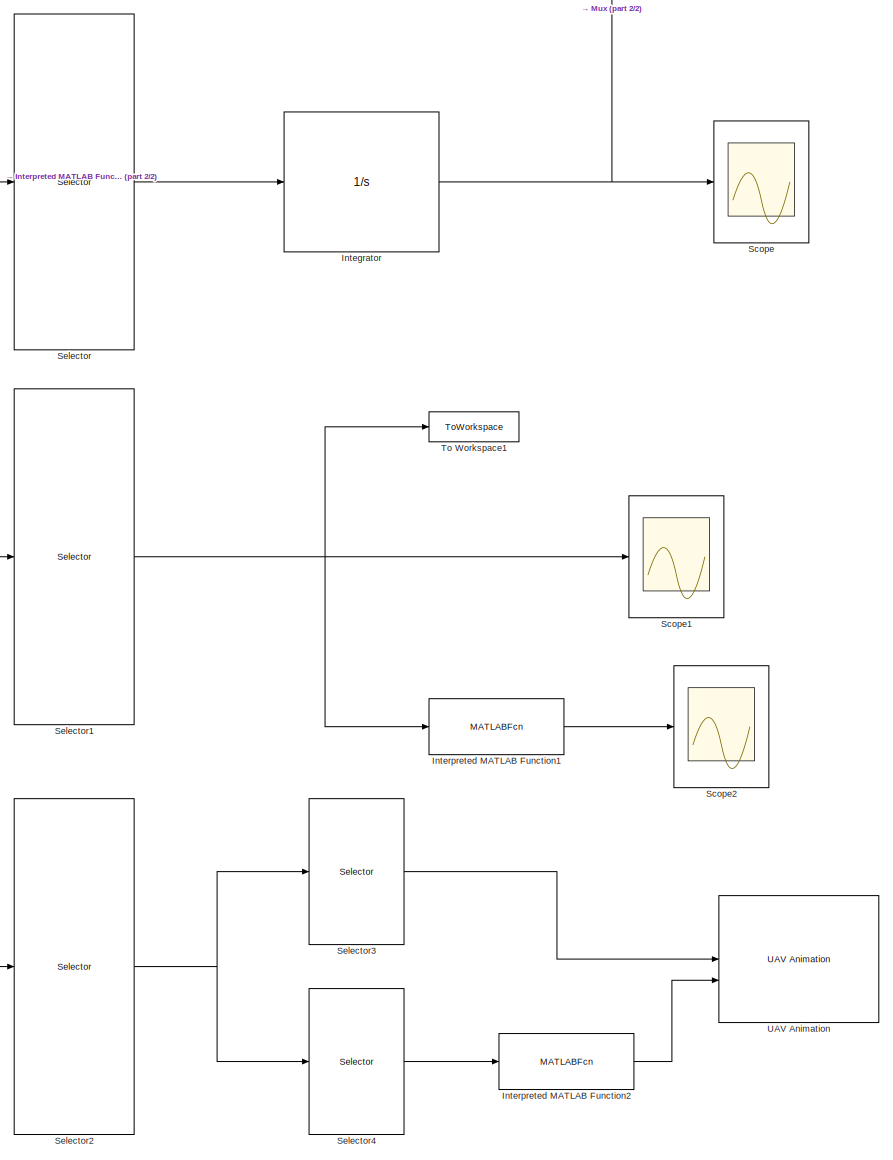
[diagram: root canvas - part 1/2, right side, full height]
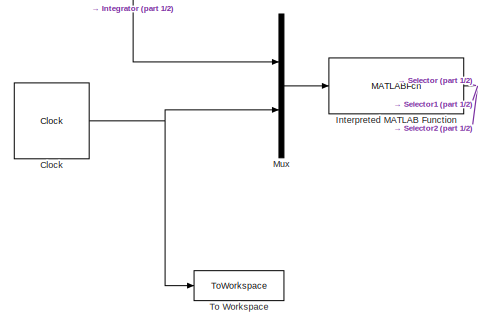
[diagram: root canvas - part 2/2, middle left region]
MODEL slx_6b4721a131e0
KIND model
CONFIG AbsTol = auto
CONFIG EnableMultiTasking = off
CONFIG FixedStep = 0.0001
CONFIG MaxStep = auto
CONFIG MinStep = auto
CONFIG RelTol = 1e-3
CONFIG SampleTimeConstraint = Unconstrained
CONFIG SolverName = ode1
CONFIG StartTime = 0.0
CONFIG StopTime = 100
BLOCK [Clock] Clock
  DisplayTime = on
BLOCK [Integrator] Integrator
  InitialCondition = [1 0 -1 0 0 0 0.1 0 -0.2 0 0.2 0]
BLOCK [MATLABFcn] Interpreted MATLAB Function
  MATLABFcn = Outerlooptest
  OutputDimensions = 16
BLOCK [MATLABFcn] Interpreted MATLAB Function1
  MATLABFcn = Innerlooptest
  OutputDimensions = 4
BLOCK [MATLABFcn] Interpreted MATLAB Function2
  MATLABFcn = quatcompute
  OutputDimensions = 4
BLOCK [Mux] Mux
  DisplayOption = bar
  Inputs = 2
BLOCK [Scope] Scope
  Floating = off
  NumInputPorts = 1
  ScopeSpecificationString = Simulink.scopes.TimeScopeBlockCfg('CurrentConfiguration', extmgr.ConfigurationSet(extmgr.Configuration('Core','General UI',true),extmgr.Configuration('Core','Source UI',true),extmgr.Configuration('Sources','WiredSimulink',true),extmgr.Configuration('Visuals','Time Domain',true,'SerializedDisplays',{struct('MinYLimReal','-11.21753','MaxYLimReal','12.65063','YLabelReal','','MinYLimMag','0.00000','Ma...<+2008ch>
BLOCK [Scope] Scope1
  Floating = off
  NumInputPorts = 1
  ScopeSpecificationString = Simulink.scopes.TimeScopeBlockCfg('CurrentConfiguration', extmgr.ConfigurationSet(extmgr.Configuration('Core','General UI',true,'FigureColor',[1 1 1]),extmgr.Configuration('Core','Source UI',true),extmgr.Configuration('Sources','WiredSimulink',true,'DataLoggingVariableName','ScopeData1'),extmgr.Configuration('Visuals','Time Domain',true,'SerializedDisplays',{struct('MinYLimReal','-3.02907','MaxYLi...<+2105ch>
BLOCK [Scope] Scope2
  Floating = off
  NumInputPorts = 1
  ScopeSpecificationString = Simulink.scopes.TimeScopeBlockCfg('CurrentConfiguration', extmgr.ConfigurationSet(extmgr.Configuration('Core','General UI',true,'FigureColor',[1 1 1]),extmgr.Configuration('Core','Source UI',true),extmgr.Configuration('Sources','WiredSimulink',true,'DataLoggingVariableName','ScopeData1'),extmgr.Configuration('Visuals','Time Domain',true,'SerializedDisplays',{struct('MinYLimReal','9.80579','MaxYLim...<+2144ch>
BLOCK [Selector] Selector
  IndexOptions = Index vector (dialog)
  Indices = [1 2 3 4 5 6 7 8 9 10 11 12]
  InputPortWidth = 16
  OutputSizes = 1
BLOCK [Selector] Selector1
  IndexOptions = Index vector (dialog)
  Indices = [13 14 15 16]
  InputPortWidth = 16
  OutputSizes = 1
BLOCK [Selector] Selector2
  IndexOptions = Index vector (dialog)
  Indices = [1 3 5 7 9 11]
  InputPortWidth = 16
  OutputSizes = 1
BLOCK [Selector] Selector3
  IndexOptions = Index vector (dialog)
  Indices = [1 2 3]
  InputPortWidth = 6
  OutputSizes = 1
BLOCK [Selector] Selector4
  IndexOptions = Index vector (dialog)
  Indices = [4 5 6]
  InputPortWidth = 6
  OutputSizes = 1
BLOCK [ToWorkspace] To Workspace
  MaxDataPoints = inf
  SampleTime = -1
  VariableName = time
BLOCK [ToWorkspace] To Workspace1
  FixptAsFi = on
  MaxDataPoints = inf
  SampleTime = -1
  VariableName = forcTorq
BLOCK [Reference] UAV Animation  REF=uavutilslib/UAV Animation
  SourceBlock = uavutilslib/UAV Animation
  SourceType = uav.sluav.internal.system.UAVAnimation
NET Clock:1 -> Mux:2, To Workspace:1
NET Integrator:1 -> Mux:1, Scope:1
LINE Interpreted MATLAB Function1:1 -> Scope2:1
LINE Interpreted MATLAB Function2:1 -> UAV Animation:2
NET Interpreted MATLAB Function:1 -> Selector1:1, Selector2:1, Selector:1
LINE Mux:1 -> Interpreted MATLAB Function:1
NET Selector1:1 -> Interpreted MATLAB Function1:1, Scope1:1, To Workspace1:1
NET Selector2:1 -> Selector3:1, Selector4:1
LINE Selector3:1 -> UAV Animation:1
LINE Selector4:1 -> Interpreted MATLAB Function2:1
LINE Selector:1 -> Integrator:1
note: NET lines group one-source signal fan-out (src -> all destinations, sorted); 1:1 wires keep LINE
